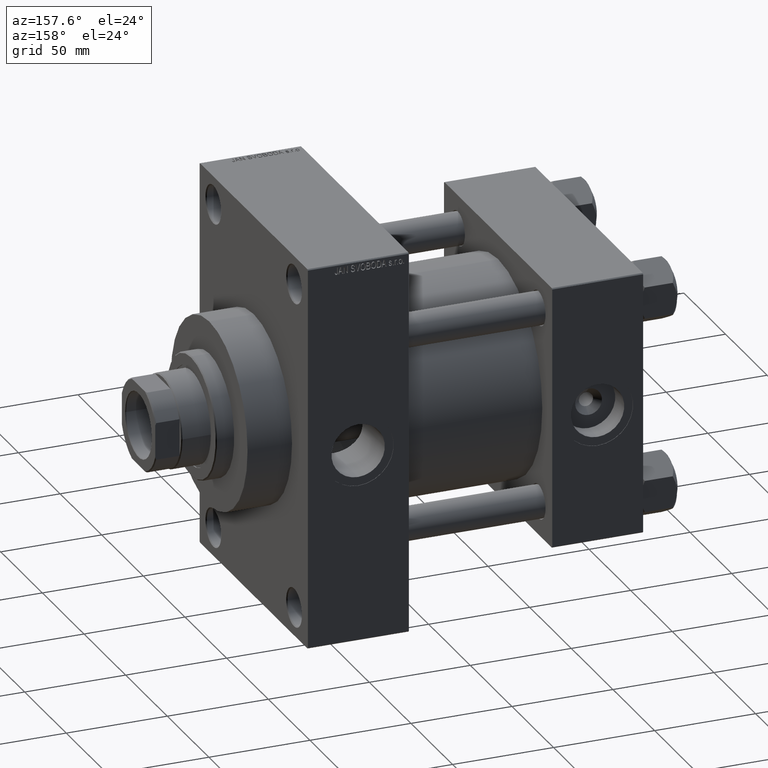
[diagram: clean part render]
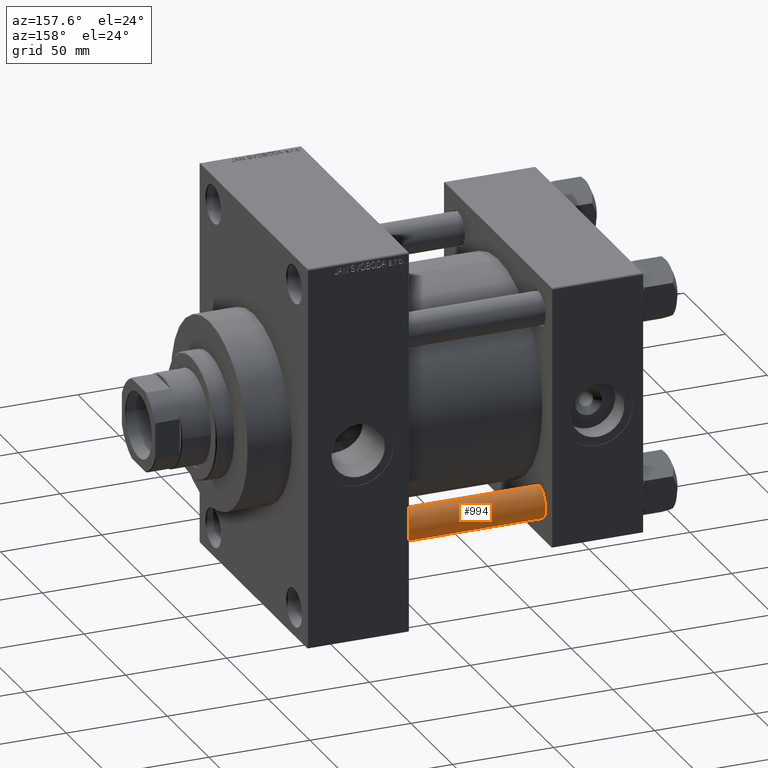
[diagram: same view with one face highlighted and labeled with its STEP entity id]
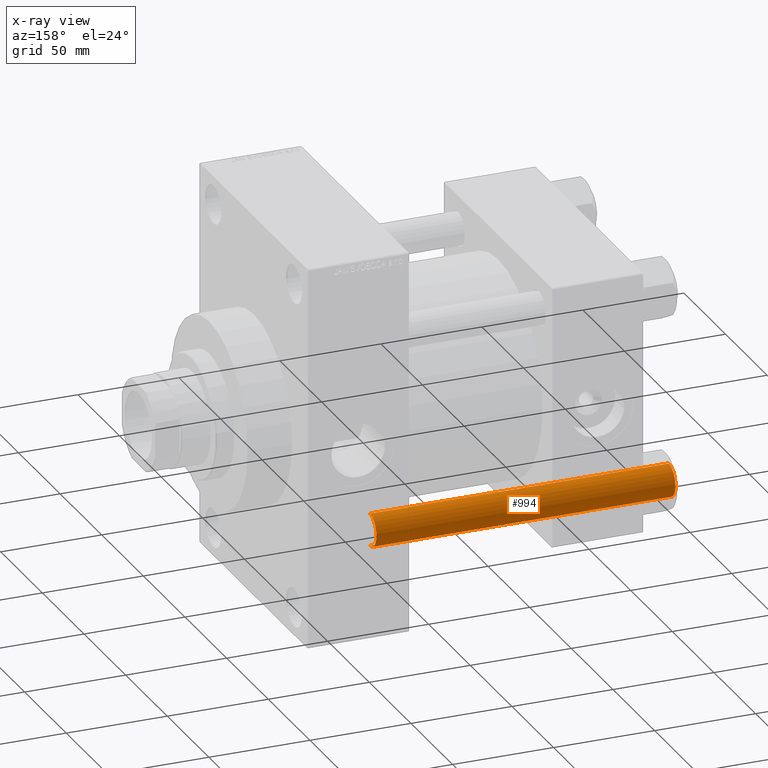
[diagram: x-ray of the same camera — body ghosted, the highlighted face saturated]
A machine part, auxiliary view. The second image highlights one B-rep face of the part: STEP entity #994.
The next image is the same camera in x-ray: the body ghosted, the highlighted face saturated — about 0% of this face is hidden behind the body in this view.
In plain terms, the highlighted cylindrical surface (edge-blend (fillet) strip) has radius 8 mm, axis along (-1, -0, 0).
Its self-contained STEP definition (entity closure, byte-faithful):
#994 = ADVANCED_FACE ( 'NONE', ( #2345 ), #17056, .T. ) ;
#1297 = CARTESIAN_POINT ( 'NONE',  ( 0.000000000000000000, 0.000000000000000000, 0.5000000000000281997 ) ) ;
#1302 = EDGE_CURVE ( 'NONE', #9485, #11652, #7079, .T. ) ;
#2345 = FACE_OUTER_BOUND ( 'NONE', #8303, .T. ) ;
#7079 = LINE ( 'NONE', #21794, #7421 ) ;
#7421 = VECTOR ( 'NONE', #13846, 1000.000000000000000 ) ;
#8200 = EDGE_CURVE ( 'NONE', #10444, #9485, #17591, .T. ) ;
#8228 = DIRECTION ( 'NONE',  ( 1.000000000000000000, 0.000000000000000000, 0.000000000000000000 ) ) ;
#8303 = EDGE_LOOP ( 'NONE', ( #39566, #26467, #36456, #35650 ) ) ;
#9485 = VERTEX_POINT ( 'NONE', #33683 ) ;
#10444 = VERTEX_POINT ( 'NONE', #34642 ) ;
#10626 = AXIS2_PLACEMENT_3D ( 'NONE', #15707, #26316, #8228 ) ;
#11652 = VERTEX_POINT ( 'NONE', #38137 ) ;
#11902 = CARTESIAN_POINT ( 'NONE',  ( -8.000000000000000000, 0.000000000000000000, 0.5000000000000281997 ) ) ;
#13846 = DIRECTION ( 'NONE',  ( -0.000000000000000000, -0.000000000000000000, -1.000000000000000000 ) ) ;
#14354 = AXIS2_PLACEMENT_3D ( 'NONE', #28342, #31754, #46458 ) ;
#15707 = CARTESIAN_POINT ( 'NONE',  ( 0.000000000000000000, 0.000000000000000000, 148.5000000000000000 ) ) ;
#15769 = DIRECTION ( 'NONE',  ( -0.000000000000000000, -0.000000000000000000, 1.000000000000000000 ) ) ;
#16123 = VECTOR ( 'NONE', #36059, 1000.000000000000000 ) ;
#16569 = EDGE_CURVE ( 'NONE', #10444, #29534, #28570, .T. ) ;
#17056 = CYLINDRICAL_SURFACE ( 'NONE', #14354, 8.000000000000000000 ) ;
#17591 = CIRCLE ( 'NONE', #10626, 8.000000000000000000 ) ;
#18922 = DIRECTION ( 'NONE',  ( 1.000000000000000000, 0.000000000000000000, 0.000000000000000000 ) ) ;
#21794 = CARTESIAN_POINT ( 'NONE',  ( 8.000000000000000000, 9.797174393178825657E-16, 149.0000000000000000 ) ) ;
#21829 = AXIS2_PLACEMENT_3D ( 'NONE', #1297, #15769, #18922 ) ;
#24956 = CARTESIAN_POINT ( 'NONE',  ( -8.000000000000000000, 0.000000000000000000, 149.0000000000000000 ) ) ;
#26316 = DIRECTION ( 'NONE',  ( 0.000000000000000000, 0.000000000000000000, -1.000000000000000000 ) ) ;
#26467 = ORIENTED_EDGE ( 'NONE', *, *, #1302, .T. ) ;
#28342 = CARTESIAN_POINT ( 'NONE',  ( 0.000000000000000000, 0.000000000000000000, 149.0000000000000000 ) ) ;
#28570 = LINE ( 'NONE', #24956, #16123 ) ;
#29438 = EDGE_CURVE ( 'NONE', #11652, #29534, #31848, .T. ) ;
#29534 = VERTEX_POINT ( 'NONE', #11902 ) ;
#31754 = DIRECTION ( 'NONE',  ( -0.000000000000000000, -0.000000000000000000, -1.000000000000000000 ) ) ;
#31848 = CIRCLE ( 'NONE', #21829, 8.000000000000000000 ) ;
#33683 = CARTESIAN_POINT ( 'NONE',  ( 8.000000000000000000, 9.797174393178825657E-16, 148.5000000000000000 ) ) ;
#34642 = CARTESIAN_POINT ( 'NONE',  ( -8.000000000000000000, 0.000000000000000000, 148.5000000000000000 ) ) ;
#35650 = ORIENTED_EDGE ( 'NONE', *, *, #16569, .F. ) ;
#36059 = DIRECTION ( 'NONE',  ( -0.000000000000000000, -0.000000000000000000, -1.000000000000000000 ) ) ;
#36456 = ORIENTED_EDGE ( 'NONE', *, *, #29438, .T. ) ;
#38137 = CARTESIAN_POINT ( 'NONE',  ( 8.000000000000000000, 9.797174393178825657E-16, 0.5000000000000281997 ) ) ;
#39566 = ORIENTED_EDGE ( 'NONE', *, *, #8200, .T. ) ;
#46458 = DIRECTION ( 'NONE',  ( -1.000000000000000000, 0.000000000000000000, 0.000000000000000000 ) ) ;